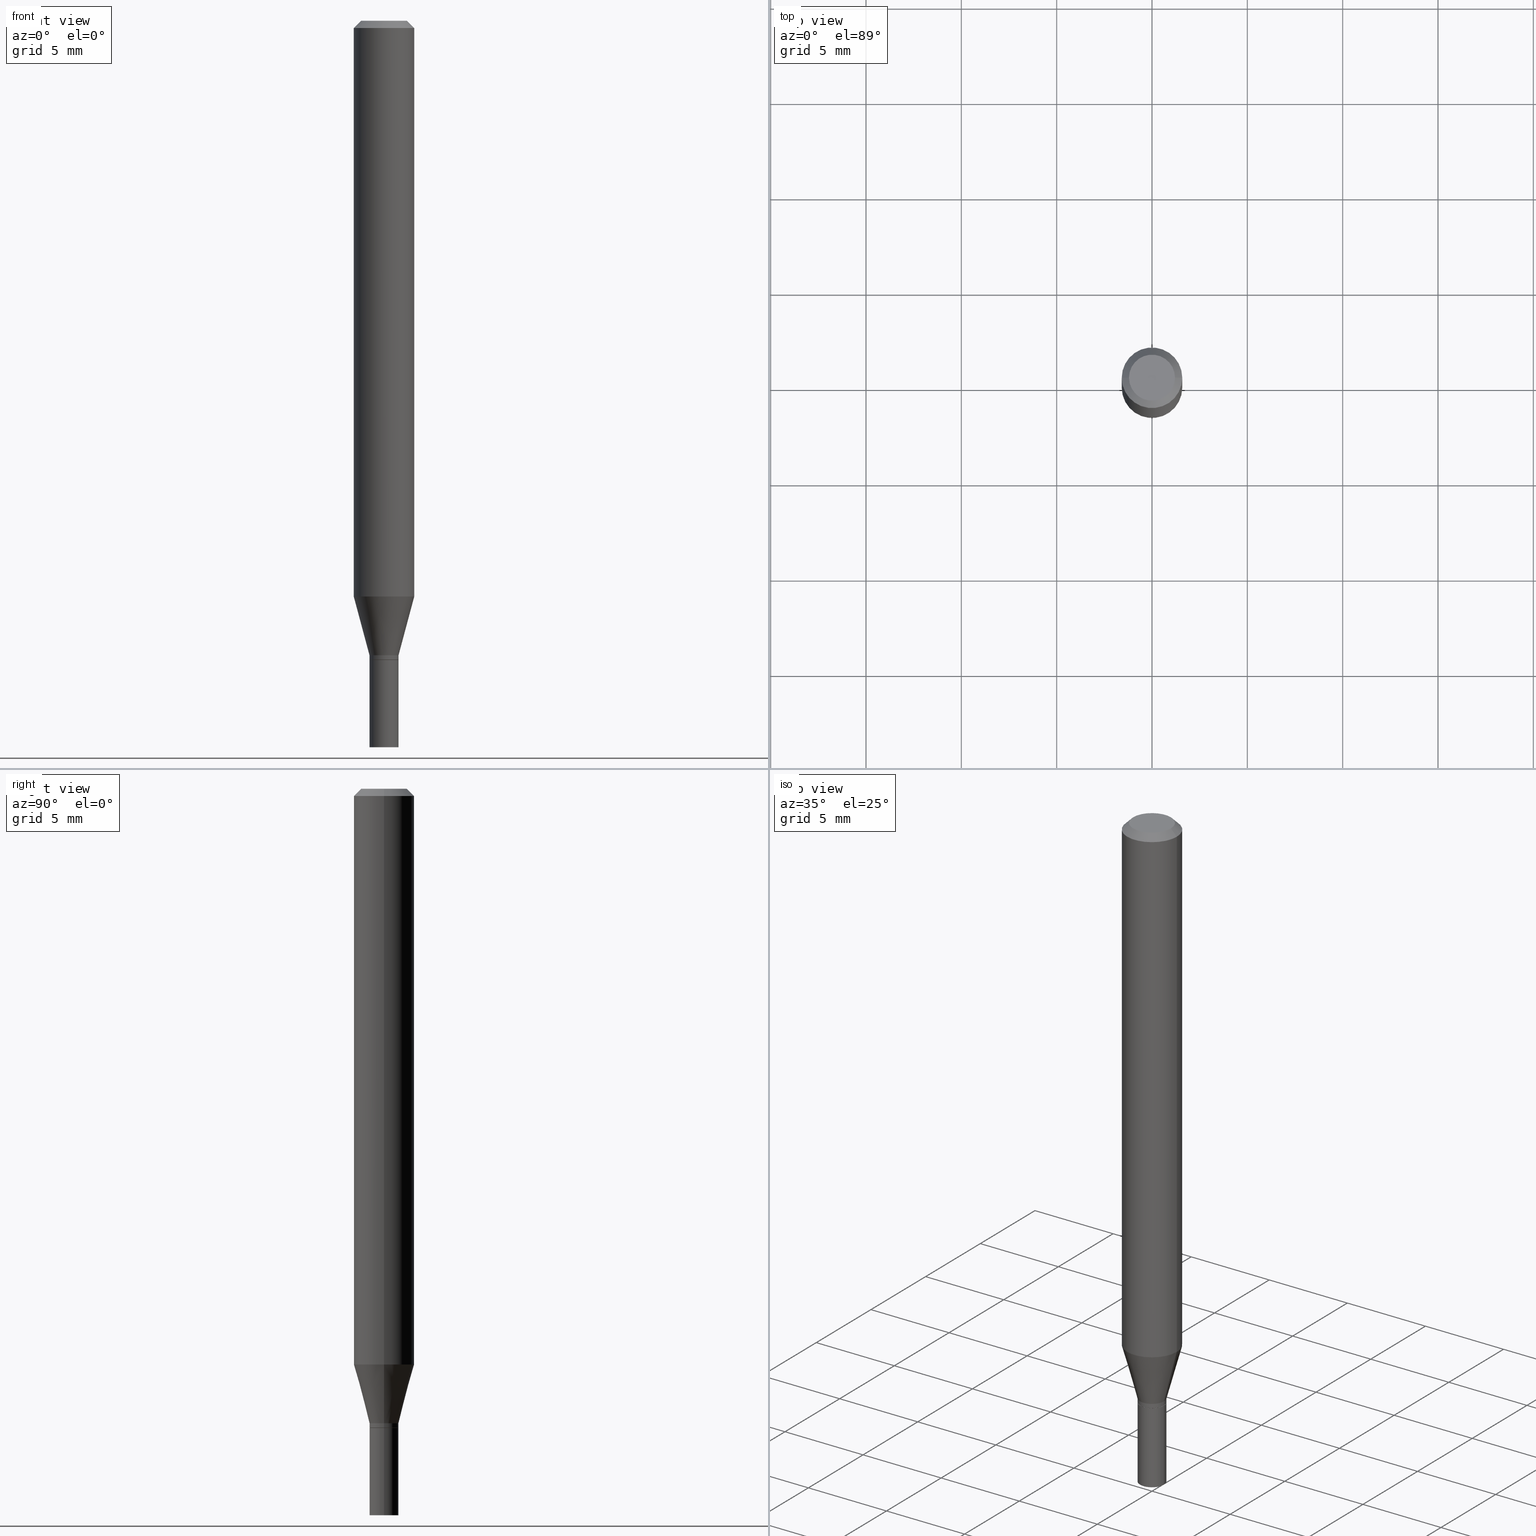
[diagram: canonical four-view strip — front | top / right | iso, engineering-drawing reading convention]
A machine part, canonical four-view strip (front | top / right | iso — engineering-drawing reading convention). The complete STEP part file that produces these views, byte-faithful:
ISO-10303-21;
HEADER;
FILE_DESCRIPTION (( 'STEP AP203' ),
    '1' );
FILE_NAME ('02489.STEP',
    '2024-03-18T20:54:57',
    ( '' ),
    ( '' ),
    'SwSTEP 2.0',
    'SolidWorks 2023',
    '' );
FILE_SCHEMA (( 'CONFIG_CONTROL_DESIGN' ));
ENDSEC;

DATA;
#1 = CIRCLE ( 'NONE', #208, 0.03000000000000020012 ) ;
#2 = CARTESIAN_POINT ( 'NONE',  ( 3.668203209277704895E-29, -5.237222008264718177E-15, -1.500000000000000222 ) ) ;
#3 = CARTESIAN_POINT ( 'NONE',  ( -0.04749999999999999362, 3.578768372314215436E-16, 2.469815280770035755E-16 ) ) ;
#4 = ORIENTED_EDGE ( 'NONE', *, *, #199, .F. ) ;
#5 = EDGE_CURVE ( 'NONE', #21, #398, #247, .T. ) ;
#6 = ORIENTED_EDGE ( 'NONE', *, *, #162, .F. ) ;
#7 = CARTESIAN_POINT ( 'NONE',  ( 3.228018824164380442E-29, -4.608755367272952437E-15, -1.320000000000000062 ) ) ;
#8 = VERTEX_POINT ( 'NONE', #402 ) ;
#9 = AXIS2_PLACEMENT_3D ( 'NONE', #206, #92, #95 ) ;
#10 = APPROVAL_DATE_TIME ( #334, #332 ) ;
#11 = VERTEX_POINT ( 'NONE', #38 ) ;
#12 = DIRECTION ( 'NONE',  ( 1.000000000000000000, -6.982962677686262766E-15, 0.000000000000000000 ) ) ;
#13 = CYLINDRICAL_SURFACE ( 'NONE', #420, 0.02999999999999999889 ) ;
#14 = ORIENTED_EDGE ( 'NONE', *, *, #147, .F. ) ;
#15 = CARTESIAN_POINT ( 'NONE',  ( -0.02949999999999999845, -4.399145260223722302E-15, -1.320000000000000062 ) ) ;
#16 = ADVANCED_FACE ( 'NONE', ( #396 ), #139, .T. ) ;
#17 = AXIS2_PLACEMENT_3D ( 'NONE', #438, #385, #315 ) ;
#18 = DIRECTION ( 'NONE',  ( -1.000000000000000000, 6.982962677686265922E-15, -4.876176775795935793E-29 ) ) ;
#19 = DIRECTION ( 'NONE',  ( -2.445468806185136597E-29, 3.491481338843145583E-15, 1.000000000000000000 ) ) ;
#20 = EDGE_CURVE ( 'NONE', #429, #276, #445, .T. ) ;
#21 = VERTEX_POINT ( 'NONE', #348 ) ;
#22 = CARTESIAN_POINT ( 'NONE',  ( 0.02999999999999999889, -5.446710888595306494E-15, -1.500000000000000222 ) ) ;
#23 = ADVANCED_FACE ( 'NONE', ( #195 ), #307, .T. ) ;
#24 = ORIENTED_EDGE ( 'NONE', *, *, #328, .F. ) ;
#25 = ADVANCED_FACE ( 'NONE', ( #160 ), #338, .T. ) ;
#26 = AXIS2_PLACEMENT_3D ( 'NONE', #366, #397, #217 ) ;
#27 = PLANE ( 'NONE',  #293 ) ;
#28 = COORDINATED_UNIVERSAL_TIME_OFFSET ( 5, 0, .BEHIND. ) ;
#29 = VERTEX_POINT ( 'NONE', #45 ) ;
#30 = CONICAL_SURFACE ( 'NONE', #118, 0.06250000000000000000, 0.7853981633974401744 ) ;
#31 = CARTESIAN_POINT ( 'NONE',  ( -0.02999999999999992256, -4.393846805875501477E-15, -1.319500000000000117 ) ) ;
#32 = CARTESIAN_POINT ( 'NONE',  ( 0.000000000000000000, 0.000000000000000000, 0.000000000000000000 ) ) ;
#33 = MECHANICAL_CONTEXT ( 'NONE', #145, 'mechanical' ) ;
#34 = ORIENTED_EDGE ( 'NONE', *, *, #358, .T. ) ;
#35 = DIRECTION ( 'NONE',  ( -2.445468806185136597E-29, 3.491481338843145583E-15, 1.000000000000000000 ) ) ;
#36 = CYLINDRICAL_SURFACE ( 'NONE', #135, 0.06250000000000000000 ) ;
#37 =( NAMED_UNIT ( * ) SI_UNIT ( $, .STERADIAN. ) SOLID_ANGLE_UNIT ( ) );
#38 = CARTESIAN_POINT ( 'NONE',  ( -0.03000000000000020012, -4.033470770154056946E-15, -1.310000000000000275 ) ) ;
#39 = APPROVAL ( #239, 'UNSPECIFIED' ) ;
#40 = LINE ( 'NONE', #184, #179 ) ;
#41 = FACE_OUTER_BOUND ( 'NONE', #254, .T. ) ;
#42 = PERSON_AND_ORGANIZATION ( #246, #370 ) ;
#43 = ORIENTED_EDGE ( 'NONE', *, *, #147, .T. ) ;
#44 = CIRCLE ( 'NONE', #318, 0.06250000000000000000 ) ;
#45 = CARTESIAN_POINT ( 'NONE',  ( 0.06250000000000000000, -4.586788184357076846E-15, -1.188708348754012878 ) ) ;
#46 = LINE ( 'NONE', #408, #283 ) ;
#47 = PERSON_AND_ORGANIZATION_ROLE ( 'classification_officer' ) ;
#48 = ORIENTED_EDGE ( 'NONE', *, *, #404, .F. ) ;
#49 = EDGE_LOOP ( 'NONE', ( #392, #381, #316, #331 ) ) ;
#50 = EDGE_CURVE ( 'NONE', #299, #153, #341, .T. ) ;
#51 = ORIENTED_EDGE ( 'NONE', *, *, #137, .T. ) ;
#52 = VERTEX_POINT ( 'NONE', #375 ) ;
#53 = DATE_TIME_ROLE ( 'classification_date' ) ;
#54 = ORIENTED_EDGE ( 'NONE', *, *, #400, .T. ) ;
#55 = DIRECTION ( 'NONE',  ( 1.000000000000000000, -6.982962677686253300E-15, 0.000000000000000000 ) ) ;
#56 = SHAPE_DEFINITION_REPRESENTATION ( #447, #89 ) ;
#57 = DIRECTION ( 'NONE',  ( -2.445468806185136597E-29, 3.491481338843145583E-15, 1.000000000000000000 ) ) ;
#58 = DIRECTION ( 'NONE',  ( 1.000000000000000000, -6.982962677686253300E-15, 0.000000000000000000 ) ) ;
#59 = AXIS2_PLACEMENT_3D ( 'NONE', #357, #221, #329 ) ;
#60 = ADVANCED_FACE ( 'NONE', ( #165 ), #237, .F. ) ;
#61 = APPROVAL_PERSON_ORGANIZATION ( #269, #332, #185 ) ;
#62 = ADVANCED_FACE ( 'NONE', ( #172 ), #433, .T. ) ;
#63 = ADVANCED_FACE ( 'NONE', ( #169 ), #319, .T. ) ;
#64 = AXIS2_PLACEMENT_3D ( 'NONE', #229, #422, #159 ) ;
#65 = CC_DESIGN_APPROVAL ( #39, ( #395 ) ) ;
#66 = CARTESIAN_POINT ( 'NONE',  ( 3.576687321579069994E-29, -5.368277968210015545E-15, -1.500000000000000222 ) ) ;
#67 = ORIENTED_EDGE ( 'NONE', *, *, #140, .T. ) ;
#68 = DIRECTION ( 'NONE',  ( 0.000000000000000000, 0.000000000000000000, 1.000000000000000000 ) ) ;
#69 = CONICAL_SURFACE ( 'NONE', #345, 0.02949999999999999845, 0.7853981633974739252 ) ;
#70 = DIRECTION ( 'NONE',  ( -1.000000000000000000, 6.982962677686265922E-15, -4.876176775795935793E-29 ) ) ;
#71 = VECTOR ( 'NONE', #190, 39.37007874015748143 ) ;
#72 = DIRECTION ( 'NONE',  ( 1.000000000000000000, -6.982962677686265922E-15, 4.876176775795935793E-29 ) ) ;
#73 = AXIS2_PLACEMENT_3D ( 'NONE', #7, #296, #301 ) ;
#74 = CYLINDRICAL_SURFACE ( 'NONE', #201, 0.02999999999999999889 ) ;
#75 = ADVANCED_FACE ( 'NONE', ( #317 ), #30, .T. ) ;
#76 = CARTESIAN_POINT ( 'NONE',  ( -0.06250000000000000000, -1.657273408692103709E-15, -0.01499999999999999944 ) ) ;
#77 = COORDINATED_UNIVERSAL_TIME_OFFSET ( 5, 0, .BEHIND. ) ;
#78 = ADVANCED_FACE ( 'NONE', ( #279 ), #27, .F. ) ;
#79 = SECURITY_CLASSIFICATION_LEVEL ( 'unclassified' ) ;
#80 = CARTESIAN_POINT ( 'NONE',  ( 0.02949999999999999845, -4.814752766264696958E-15, -1.320000000000000062 ) ) ;
#81 = COORDINATED_UNIVERSAL_TIME_OFFSET ( 5, 0, .BEHIND. ) ;
#82 = DIRECTION ( 'NONE',  ( -2.445468806185136877E-29, 3.491481338843145188E-15, 1.000000000000000000 ) ) ;
#83 = ORIENTED_EDGE ( 'NONE', *, *, #50, .T. ) ;
#84 = ORIENTED_EDGE ( 'NONE', *, *, #218, .F. ) ;
#85 = LINE ( 'NONE', #15, #129 ) ;
#86 = DIRECTION ( 'NONE',  ( -2.445468806185136597E-29, 3.491481338843145583E-15, 1.000000000000000000 ) ) ;
#87 = DIRECTION ( 'NONE',  ( 1.000000000000000000, -6.982962677686250933E-15, 0.000000000000000000 ) ) ;
#88 = AXIS2_PLACEMENT_3D ( 'NONE', #374, #241, #275 ) ;
#89 = ADVANCED_BREP_SHAPE_REPRESENTATION ( '02489', ( #365, #213, #130 ), #278 ) ;
#90 = UNCERTAINTY_MEASURE_WITH_UNIT (LENGTH_MEASURE( 1.000000000000000082E-05 ), #363, 'distance_accuracy_value', 'NONE');
#91 = CARTESIAN_POINT ( 'NONE',  ( 3.668203209277704895E-29, -5.237222008264718177E-15, -1.500000000000000222 ) ) ;
#92 = DIRECTION ( 'NONE',  ( -2.445468806185136597E-29, 3.491481338843145583E-15, 1.000000000000000000 ) ) ;
#93 = EDGE_LOOP ( 'NONE', ( #243, #167, #377, #14 ) ) ;
#94 = AXIS2_PLACEMENT_3D ( 'NONE', #216, #99, #72 ) ;
#95 = DIRECTION ( 'NONE',  ( 1.000000000000000000, -6.982962677686267499E-15, 4.852736867747366768E-29 ) ) ;
#96 = AXIS2_PLACEMENT_3D ( 'NONE', #112, #19, #268 ) ;
#97 = EDGE_CURVE ( 'NONE', #436, #276, #163, .T. ) ;
#98 = DIRECTION ( 'NONE',  ( 1.000000000000000000, -6.982962677686268288E-15, 0.000000000000000000 ) ) ;
#99 = DIRECTION ( 'NONE',  ( -2.445468806185136597E-29, 3.491481338843145583E-15, 1.000000000000000000 ) ) ;
#100 = EDGE_CURVE ( 'NONE', #8, #153, #359, .T. ) ;
#101 = ORIENTED_EDGE ( 'NONE', *, *, #140, .F. ) ;
#102 = VERTEX_POINT ( 'NONE', #22 ) ;
#103 = LINE ( 'NONE', #253, #250 ) ;
#104 = CC_DESIGN_DATE_AND_TIME_ASSIGNMENT ( #155, #442, ( #212 ) ) ;
#105 = CONICAL_SURFACE ( 'NONE', #200, 0.06250000000000000000, 0.7853981633974401744 ) ;
#106 =( LENGTH_UNIT ( ) NAMED_UNIT ( * ) SI_UNIT ( $, .METRE. ) );
#107 = LOCAL_TIME ( 16, 54, 57.00000000000000000, #28 ) ;
#108 = DIRECTION ( 'NONE',  ( -2.438088387897960049E-29, 3.491481338843145188E-15, 1.000000000000000000 ) ) ;
#109 = APPROVAL_STATUS ( 'not_yet_approved' ) ;
#110 = PERSON_AND_ORGANIZATION_ROLE ( 'design_supplier' ) ;
#111 = EDGE_LOOP ( 'NONE', ( #121, #83, #393, #410 ) ) ;
#112 = CARTESIAN_POINT ( 'NONE',  ( 0.000000000000000000, 0.000000000000000000, 0.000000000000000000 ) ) ;
#113 = CARTESIAN_POINT ( 'NONE',  ( 0.06250000000000000000, -4.888073874380388472E-16, -0.01499999999999999944 ) ) ;
#114 = PERSON_AND_ORGANIZATION ( #246, #370 ) ;
#115 = EDGE_LOOP ( 'NONE', ( #230, #427 ) ) ;
#116 = CALENDAR_DATE ( 2024, 18, 3 ) ;
#117 = CC_DESIGN_PERSON_AND_ORGANIZATION_ASSIGNMENT ( #322, #461, ( #426 ) ) ;
#118 = AXIS2_PLACEMENT_3D ( 'NONE', #453, #131, #274 ) ;
#119 = LOCAL_TIME ( 16, 54, 57.00000000000000000, #77 ) ;
#120 = DIRECTION ( 'NONE',  ( -2.445468806185136597E-29, 3.491481338843145583E-15, 1.000000000000000000 ) ) ;
#121 = ORIENTED_EDGE ( 'NONE', *, *, #284, .T. ) ;
#122 = FACE_OUTER_BOUND ( 'NONE', #360, .T. ) ;
#123 = ORIENTED_EDGE ( 'NONE', *, *, #245, .F. ) ;
#124 = ORIENTED_EDGE ( 'NONE', *, *, #20, .T. ) ;
#125 = FACE_OUTER_BOUND ( 'NONE', #111, .T. ) ;
#126 = ORIENTED_EDGE ( 'NONE', *, *, #323, .T. ) ;
#127 = CC_DESIGN_DATE_AND_TIME_ASSIGNMENT ( #270, #53, ( #395 ) ) ;
#128 = CALENDAR_DATE ( 2024, 18, 3 ) ;
#129 = VECTOR ( 'NONE', #154, 39.37007874015748143 ) ;
#130 = AXIS2_PLACEMENT_3D ( 'NONE', #289, #68, #362 ) ;
#131 = DIRECTION ( 'NONE',  ( 2.445468806185136597E-29, -3.491481338843145583E-15, -1.000000000000000000 ) ) ;
#132 = CARTESIAN_POINT ( 'NONE',  ( 0.000000000000000000, 0.000000000000000000, 0.000000000000000000 ) ) ;
#133 = ADVANCED_FACE ( 'NONE', ( #232 ), #105, .T. ) ;
#134 = CIRCLE ( 'NONE', #403, 0.03000000000000020012 ) ;
#135 = AXIS2_PLACEMENT_3D ( 'NONE', #330, #175, #142 ) ;
#136 = CC_DESIGN_APPROVAL ( #143, ( #212 ) ) ;
#137 = EDGE_CURVE ( 'NONE', #327, #11, #304, .T. ) ;
#138 = DIRECTION ( 'NONE',  ( 0.2588190451025214611, 1.565188264969621573E-15, 0.9659258262890682012 ) ) ;
#139 = CYLINDRICAL_SURFACE ( 'NONE', #94, 0.03000000000000006481 ) ;
#140 = EDGE_CURVE ( 'NONE', #52, #29, #170, .T. ) ;
#141 = LINE ( 'NONE', #288, #258 ) ;
#142 = DIRECTION ( 'NONE',  ( 1.000000000000000000, -6.982962677686266711E-15, 4.876176775795935793E-29 ) ) ;
#143 = APPROVAL ( #109, 'UNSPECIFIED' ) ;
#144 = ORIENTED_EDGE ( 'NONE', *, *, #5, .T. ) ;
#145 = APPLICATION_CONTEXT ( 'configuration controlled 3d designs of mechanical parts and assemblies' ) ;
#146 = DIRECTION ( 'NONE',  ( -2.445468806185136877E-29, 3.491481338843145188E-15, 1.000000000000000000 ) ) ;
#147 = EDGE_CURVE ( 'NONE', #153, #8, #353, .T. ) ;
#148 = FACE_OUTER_BOUND ( 'NONE', #115, .T. ) ;
#149 = CLOSED_SHELL ( 'NONE', ( #16, #181, #75, #444, #62, #209, #25, #133, #465, #60, #23, #63 ) ) ;
#150 = AXIS2_PLACEMENT_3D ( 'NONE', #203, #371, #457 ) ;
#151 = DIRECTION ( 'NONE',  ( 0.7071067811865416886, -7.319954787623233957E-15, -0.7071067811865531239 ) ) ;
#152 = PERSON_AND_ORGANIZATION ( #246, #370 ) ;
#153 = VERTEX_POINT ( 'NONE', #443 ) ;
#154 = DIRECTION ( 'NONE',  ( -0.7071067811865656694, 7.493145998870420424E-15, 0.7071067811865294761 ) ) ;
#155 = DATE_AND_TIME ( #265, #119 ) ;
#156 = ORIENTED_EDGE ( 'NONE', *, *, #233, .F. ) ;
#157 = DIRECTION ( 'NONE',  ( 2.445468806185136597E-29, -3.491481338843145583E-15, -1.000000000000000000 ) ) ;
#158 = ORIENTED_EDGE ( 'NONE', *, *, #100, .T. ) ;
#159 = DIRECTION ( 'NONE',  ( 1.000000000000000000, -6.982962677686268288E-15, 0.000000000000000000 ) ) ;
#160 = FACE_OUTER_BOUND ( 'NONE', #401, .T. ) ;
#161 = AXIS2_PLACEMENT_3D ( 'NONE', #343, #277, #267 ) ;
#162 = EDGE_CURVE ( 'NONE', #205, #21, #198, .T. ) ;
#163 = LINE ( 'NONE', #310, #356 ) ;
#164 = DIRECTION ( 'NONE',  ( -0.7071067811865416886, 2.468850131082196713E-15, -0.7071067811865531239 ) ) ;
#165 = FACE_OUTER_BOUND ( 'NONE', #376, .T. ) ;
#166 = CC_DESIGN_PERSON_AND_ORGANIZATION_ASSIGNMENT ( #439, #110, ( #320 ) ) ;
#167 = ORIENTED_EDGE ( 'NONE', *, *, #430, .T. ) ;
#168 = EDGE_CURVE ( 'NONE', #421, #327, #85, .T. ) ;
#169 = FACE_OUTER_BOUND ( 'NONE', #448, .T. ) ;
#170 = CIRCLE ( 'NONE', #219, 0.06250000000000000000 ) ;
#171 = ORIENTED_EDGE ( 'NONE', *, *, #388, .F. ) ;
#172 = FACE_OUTER_BOUND ( 'NONE', #354, .T. ) ;
#173 = CIRCLE ( 'NONE', #238, 0.04749999999999999362 ) ;
#174 = EDGE_CURVE ( 'NONE', #102, #8, #451, .T. ) ;
#175 = DIRECTION ( 'NONE',  ( -2.445468806185136597E-29, 3.491481338843145583E-15, 1.000000000000000000 ) ) ;
#176 = CARTESIAN_POINT ( 'NONE',  ( 0.04749999999999999362, -4.035134999187574186E-16, 2.469815280770085059E-16 ) ) ;
#177 = CARTESIAN_POINT ( 'NONE',  ( 3.203564136102529457E-29, -4.573840553884521577E-15, -1.310000000000000275 ) ) ;
#178 = VECTOR ( 'NONE', #146, 39.37007874015748143 ) ;
#179 = VECTOR ( 'NONE', #151, 39.37007874015748854 ) ;
#180 = EDGE_CURVE ( 'NONE', #327, #21, #186, .T. ) ;
#181 = ADVANCED_FACE ( 'NONE', ( #122 ), #69, .T. ) ;
#182 = DIRECTION ( 'NONE',  ( 2.438088387897960049E-29, -3.491481338843145188E-15, -1.000000000000000000 ) ) ;
#183 = DIRECTION ( 'NONE',  ( 1.000000000000000000, -6.982962677686253300E-15, 0.000000000000000000 ) ) ;
#184 = CARTESIAN_POINT ( 'NONE',  ( 0.06250000000000000000, -4.811533449433679005E-16, -0.01499999999999999944 ) ) ;
#185 = APPROVAL_ROLE ( '' ) ;
#186 = CIRCLE ( 'NONE', #88, 0.02999999999999992256 ) ;
#187 = EDGE_LOOP ( 'NONE', ( #158, #43 ) ) ;
#188 = CARTESIAN_POINT ( 'NONE',  ( 0.03000000000000020012, -4.783329434215110683E-15, -1.310000000000000275 ) ) ;
#189 = ADVANCED_FACE ( 'NONE', ( #125 ), #13, .T. ) ;
#190 = DIRECTION ( 'NONE',  ( -2.445468806185136877E-29, 3.491481338843145188E-15, 1.000000000000000000 ) ) ;
#191 = APPROVAL_STATUS ( 'not_yet_approved' ) ;
#192 = ORIENTED_EDGE ( 'NONE', *, *, #273, .F. ) ;
#193 = EDGE_LOOP ( 'NONE', ( #342, #313, #295, #192 ) ) ;
#194 = DIRECTION ( 'NONE',  ( -2.445468806185136597E-29, 3.491481338843145583E-15, 1.000000000000000000 ) ) ;
#195 = FACE_OUTER_BOUND ( 'NONE', #49, .T. ) ;
#196 = DIRECTION ( 'NONE',  ( 2.438088387897960049E-29, -3.491481338843145188E-15, -1.000000000000000000 ) ) ;
#197 = ORIENTED_EDGE ( 'NONE', *, *, #168, .T. ) ;
#198 = LINE ( 'NONE', #413, #379 ) ;
#199 = EDGE_CURVE ( 'NONE', #398, #11, #134, .T. ) ;
#200 = AXIS2_PLACEMENT_3D ( 'NONE', #314, #157, #378 ) ;
#201 = AXIS2_PLACEMENT_3D ( 'NONE', #32, #222, #297 ) ;
#202 = ORIENTED_EDGE ( 'NONE', *, *, #400, .F. ) ;
#203 = CARTESIAN_POINT ( 'NONE',  ( 3.203564136102529457E-29, -4.573840553884521577E-15, -1.310000000000000275 ) ) ;
#204 = CARTESIAN_POINT ( 'NONE',  ( 3.228018824164380442E-29, -4.608755367272952437E-15, -1.320000000000000062 ) ) ;
#205 = VERTEX_POINT ( 'NONE', #80 ) ;
#206 = CARTESIAN_POINT ( 'NONE',  ( -6.039856226162565090E-45, 8.623313963198306787E-31, 2.469815280770059421E-16 ) ) ;
#207 = AXIS2_PLACEMENT_3D ( 'NONE', #66, #108, #256 ) ;
#208 = AXIS2_PLACEMENT_3D ( 'NONE', #177, #326, #183 ) ;
#209 = ADVANCED_FACE ( 'NONE', ( #227 ), #409, .T. ) ;
#210 = APPLICATION_CONTEXT ( 'configuration controlled 3d designs of mechanical parts and assemblies' ) ;
#211 = DIRECTION ( 'NONE',  ( -2.445468806185136597E-29, 3.491481338843145583E-15, 1.000000000000000000 ) ) ;
#212 = PRODUCT_DEFINITION ( 'UNKNOWN', '', #320, #384 ) ;
#213 = MANIFOLD_SOLID_BREP ( 'Body-Move/Copy2[2]', #149 ) ;
#214 = CIRCLE ( 'NONE', #9, 0.04749999999999999362 ) ;
#215 = DIRECTION ( 'NONE',  ( -2.445468806185136877E-29, 3.491481338843145188E-15, 1.000000000000000000 ) ) ;
#216 = CARTESIAN_POINT ( 'NONE',  ( 0.000000000000000000, 0.000000000000000000, 0.000000000000000000 ) ) ;
#217 = DIRECTION ( 'NONE',  ( 1.000000000000000000, -6.982962677686254089E-15, 0.000000000000000000 ) ) ;
#218 = EDGE_CURVE ( 'NONE', #350, #436, #214, .T. ) ;
#219 = AXIS2_PLACEMENT_3D ( 'NONE', #418, #194, #12 ) ;
#220 = CARTESIAN_POINT ( 'NONE',  ( 3.668203209277705088E-31, -5.237222008264718399E-17, -0.01499999999999999944 ) ) ;
#221 = DIRECTION ( 'NONE',  ( -2.445468806185136597E-29, 3.491481338843145583E-15, 1.000000000000000000 ) ) ;
#222 = DIRECTION ( 'NONE',  ( -2.445468806185136597E-29, 3.491481338843145583E-15, 1.000000000000000000 ) ) ;
#223 = DIRECTION ( 'NONE',  ( -2.445468806185136597E-29, 3.491481338843145583E-15, 1.000000000000000000 ) ) ;
#224 = FACE_OUTER_BOUND ( 'NONE', #193, .T. ) ;
#225 = COORDINATED_UNIVERSAL_TIME_OFFSET ( 5, 0, .BEHIND. ) ;
#226 = CIRCLE ( 'NONE', #26, 0.02999999999999992256 ) ;
#227 = FACE_OUTER_BOUND ( 'NONE', #252, .T. ) ;
#228 = DATE_AND_TIME ( #406, #272 ) ;
#229 = CARTESIAN_POINT ( 'NONE',  ( 3.228018824164380442E-29, -4.608755367272952437E-15, -1.320000000000000062 ) ) ;
#230 = ORIENTED_EDGE ( 'NONE', *, *, #284, .F. ) ;
#231 = ORIENTED_EDGE ( 'NONE', *, *, #5, .F. ) ;
#232 = FACE_OUTER_BOUND ( 'NONE', #266, .T. ) ;
#233 = EDGE_CURVE ( 'NONE', #421, #205, #271, .T. ) ;
#234 = EDGE_LOOP ( 'NONE', ( #303, #51, #4, #231 ) ) ;
#235 = DIRECTION ( 'NONE',  ( 1.000000000000000000, -6.982962677686267499E-15, 4.876176775795936353E-29 ) ) ;
#236 = AXIS2_PLACEMENT_3D ( 'NONE', #321, #57, #58 ) ;
#237 = PLANE ( 'NONE',  #17 ) ;
#238 = AXIS2_PLACEMENT_3D ( 'NONE', #305, #120, #264 ) ;
#239 = APPROVAL_STATUS ( 'not_yet_approved' ) ;
#240 = ORIENTED_EDGE ( 'NONE', *, *, #358, .F. ) ;
#241 = DIRECTION ( 'NONE',  ( -2.445468806185136597E-29, 3.491481338843145583E-15, 1.000000000000000000 ) ) ;
#242 = EDGE_CURVE ( 'NONE', #29, #52, #335, .T. ) ;
#243 = ORIENTED_EDGE ( 'NONE', *, *, #50, .F. ) ;
#244 = LOCAL_TIME ( 16, 54, 57.00000000000000000, #306 ) ;
#245 = EDGE_CURVE ( 'NONE', #52, #276, #141, .T. ) ;
#246 = PERSON ( 'UNSPECIFIED', 'UNSPECIFIED', 'UNSPECIFIED', ('UNSPECIFIED'), ('UNSPECIFIED'), ('UNSPECIFIED') ) ;
#247 = LINE ( 'NONE', #255, #178 ) ;
#248 = CC_DESIGN_PERSON_AND_ORGANIZATION_ASSIGNMENT ( #152, #298, ( #320 ) ) ;
#249 = ADVANCED_FACE ( 'NONE', ( #148 ), #435, .F. ) ;
#250 = VECTOR ( 'NONE', #138, 39.37007874015747433 ) ;
#251 = DIRECTION ( 'NONE',  ( 1.000000000000000000, -6.982962677686266711E-15, 0.000000000000000000 ) ) ;
#252 = EDGE_LOOP ( 'NONE', ( #48, #34, #414, #101 ) ) ;
#253 = CARTESIAN_POINT ( 'NONE',  ( 0.03000000000000020012, -4.783329434215110683E-15, -1.310000000000000275 ) ) ;
#254 = EDGE_LOOP ( 'NONE', ( #54, #290 ) ) ;
#255 = CARTESIAN_POINT ( 'NONE',  ( 0.03000000000000006481, -2.094888803305884401E-16, 1.462853032738783856E-30 ) ) ;
#256 = DIRECTION ( 'NONE',  ( 1.000000000000000000, -6.982962677686265922E-15, 4.876176775795935793E-29 ) ) ;
#257 = FACE_OUTER_BOUND ( 'NONE', #93, .T. ) ;
#258 = VECTOR ( 'NONE', #215, 39.37007874015748143 ) ;
#259 = CC_DESIGN_APPROVAL ( #332, ( #320 ) ) ;
#260 = LINE ( 'NONE', #405, #325 ) ;
#261 = APPROVAL_ROLE ( '' ) ;
#262 = ORIENTED_EDGE ( 'NONE', *, *, #97, .T. ) ;
#263 = LENGTH_MEASURE_WITH_UNIT ( LENGTH_MEASURE( 0.02539999999999999897 ), #106 );
#264 = DIRECTION ( 'NONE',  ( 1.000000000000000000, -6.982962677686267499E-15, 4.852736867747366768E-29 ) ) ;
#265 = CALENDAR_DATE ( 2024, 18, 3 ) ;
#266 = EDGE_LOOP ( 'NONE', ( #419, #202, #262, #126 ) ) ;
#267 = DIRECTION ( 'NONE',  ( 1.000000000000000000, -6.982962677686268288E-15, 0.000000000000000000 ) ) ;
#268 = DIRECTION ( 'NONE',  ( 1.000000000000000000, -6.982962677686266711E-15, 4.876176775795935793E-29 ) ) ;
#269 = PERSON_AND_ORGANIZATION ( #246, #370 ) ;
#270 = DATE_AND_TIME ( #116, #244 ) ;
#271 = CIRCLE ( 'NONE', #462, 0.02949999999999999845 ) ;
#272 = LOCAL_TIME ( 16, 54, 57.00000000000000000, #81 ) ;
#273 = EDGE_CURVE ( 'NONE', #29, #429, #260, .T. ) ;
#274 = DIRECTION ( 'NONE',  ( -1.000000000000000000, 6.982962677686266711E-15, 0.000000000000000000 ) ) ;
#275 = DIRECTION ( 'NONE',  ( 1.000000000000000000, -6.982962677686254089E-15, 0.000000000000000000 ) ) ;
#276 = VERTEX_POINT ( 'NONE', #76 ) ;
#277 = DIRECTION ( 'NONE',  ( -2.445468806185136597E-29, 3.491481338843145583E-15, 1.000000000000000000 ) ) ;
#278 =( GEOMETRIC_REPRESENTATION_CONTEXT ( 3 ) GLOBAL_UNCERTAINTY_ASSIGNED_CONTEXT ( ( #90 ) ) GLOBAL_UNIT_ASSIGNED_CONTEXT ( ( #363, #428, #37 ) ) REPRESENTATION_CONTEXT ( 'NONE', 'WORKASPACE' ) );
#279 = FACE_OUTER_BOUND ( 'NONE', #187, .T. ) ;
#280 = DIRECTION ( 'NONE',  ( 1.000000000000000000, -6.982962677686265922E-15, 4.876176775795935793E-29 ) ) ;
#281 = DIMENSIONAL_EXPONENTS ( 1.000000000000000000, 0.000000000000000000, 0.000000000000000000, 0.000000000000000000, 0.000000000000000000, 0.000000000000000000, 0.000000000000000000 ) ;
#282 = VECTOR ( 'NONE', #82, 39.37007874015748143 ) ;
#283 = VECTOR ( 'NONE', #441, 39.37007874015747433 ) ;
#284 = EDGE_CURVE ( 'NONE', #102, #299, #455, .T. ) ;
#285 = DIRECTION ( 'NONE',  ( 1.000000000000000000, -6.982962677686250933E-15, 0.000000000000000000 ) ) ;
#286 = DIRECTION ( 'NONE',  ( -2.445468806185136597E-29, 3.491481338843145583E-15, 1.000000000000000000 ) ) ;
#287 = ORIENTED_EDGE ( 'NONE', *, *, #180, .T. ) ;
#288 = CARTESIAN_POINT ( 'NONE',  ( -0.06250000000000000000, 4.440892098500626162E-16, -3.074334431409316114E-30 ) ) ;
#289 = CARTESIAN_POINT ( 'NONE',  ( 0.000000000000000000, 0.000000000000000000, 0.000000000000000000 ) ) ;
#290 = ORIENTED_EDGE ( 'NONE', *, *, #218, .T. ) ;
#291 = DIRECTION ( 'NONE',  ( 1.000000000000000000, -6.982962677686268288E-15, 0.000000000000000000 ) ) ;
#292 = EDGE_CURVE ( 'NONE', #398, #29, #103, .T. ) ;
#293 = AXIS2_PLACEMENT_3D ( 'NONE', #458, #196, #18 ) ;
#294 = CIRCLE ( 'NONE', #73, 0.02949999999999999845 ) ;
#295 = ORIENTED_EDGE ( 'NONE', *, *, #20, .F. ) ;
#296 = DIRECTION ( 'NONE',  ( -2.445468806185136597E-29, 3.491481338843145583E-15, 1.000000000000000000 ) ) ;
#297 = DIRECTION ( 'NONE',  ( 1.000000000000000000, -6.982962677686267499E-15, 4.876176775795936353E-29 ) ) ;
#298 = PERSON_AND_ORGANIZATION_ROLE ( 'creator' ) ;
#299 = VERTEX_POINT ( 'NONE', #324 ) ;
#300 = CARTESIAN_POINT ( 'NONE',  ( 3.228018824164380442E-29, -4.608755367272952437E-15, -1.320000000000000062 ) ) ;
#301 = DIRECTION ( 'NONE',  ( 1.000000000000000000, -6.982962677686250933E-15, 0.000000000000000000 ) ) ;
#302 = APPLICATION_PROTOCOL_DEFINITION ( 'international standard', 'config_control_design', 1994, #210 ) ;
#303 = ORIENTED_EDGE ( 'NONE', *, *, #328, .T. ) ;
#304 = LINE ( 'NONE', #311, #369 ) ;
#305 = CARTESIAN_POINT ( 'NONE',  ( -6.039856226162565090E-45, 8.623313963198306787E-31, 2.469815280770059421E-16 ) ) ;
#306 = COORDINATED_UNIVERSAL_TIME_OFFSET ( 5, 0, .BEHIND. ) ;
#307 = CONICAL_SURFACE ( 'NONE', #346, 0.02949999999999999845, 0.7853981633974739252 ) ;
#308 = ORIENTED_EDGE ( 'NONE', *, *, #386, .T. ) ;
#309 = LOCAL_TIME ( 16, 54, 57.00000000000000000, #225 ) ;
#310 = CARTESIAN_POINT ( 'NONE',  ( -0.06250000000000000000, 3.840629472727444916E-16, -0.01499999999999999944 ) ) ;
#311 = CARTESIAN_POINT ( 'NONE',  ( -0.03000000000000006481, 2.131628207280305163E-16, -1.475680527076474859E-30 ) ) ;
#312 = PERSON_AND_ORGANIZATION ( #246, #370 ) ;
#313 = ORIENTED_EDGE ( 'NONE', *, *, #245, .T. ) ;
#314 = CARTESIAN_POINT ( 'NONE',  ( 3.668203209277705088E-31, -5.237222008264718399E-17, -0.01499999999999999944 ) ) ;
#315 = DIRECTION ( 'NONE',  ( 1.000000000000000000, -6.982962677686265922E-15, 4.876176775795935793E-29 ) ) ;
#316 = ORIENTED_EDGE ( 'NONE', *, *, #162, .T. ) ;
#317 = FACE_OUTER_BOUND ( 'NONE', #364, .T. ) ;
#318 = AXIS2_PLACEMENT_3D ( 'NONE', #361, #286, #251 ) ;
#319 = CYLINDRICAL_SURFACE ( 'NONE', #394, 0.03000000000000006481 ) ;
#320 = PRODUCT_DEFINITION_FORMATION_WITH_SPECIFIED_SOURCE ( 'ANY', '', #426, .NOT_KNOWN. ) ;
#321 = CARTESIAN_POINT ( 'NONE',  ( 3.203564136102529457E-29, -4.573840553884521577E-15, -1.310000000000000275 ) ) ;
#322 = PERSON_AND_ORGANIZATION ( #246, #370 ) ;
#323 = EDGE_CURVE ( 'NONE', #276, #429, #44, .T. ) ;
#324 = CARTESIAN_POINT ( 'NONE',  ( -0.02999999999999999889, -4.709825867040805456E-15, -1.500000000000000222 ) ) ;
#325 = VECTOR ( 'NONE', #431, 39.37007874015748143 ) ;
#326 = DIRECTION ( 'NONE',  ( -2.445468806185136597E-29, 3.491481338843145583E-15, 1.000000000000000000 ) ) ;
#327 = VERTEX_POINT ( 'NONE', #31 ) ;
#328 = EDGE_CURVE ( 'NONE', #21, #327, #226, .T. ) ;
#329 = DIRECTION ( 'NONE',  ( 1.000000000000000000, -6.982962677686262766E-15, 0.000000000000000000 ) ) ;
#330 = CARTESIAN_POINT ( 'NONE',  ( 0.000000000000000000, 0.000000000000000000, 0.000000000000000000 ) ) ;
#331 = ORIENTED_EDGE ( 'NONE', *, *, #180, .F. ) ;
#332 = APPROVAL ( #191, 'UNSPECIFIED' ) ;
#333 = PLANE ( 'NONE',  #336 ) ;
#334 = DATE_AND_TIME ( #367, #309 ) ;
#335 = CIRCLE ( 'NONE', #59, 0.06250000000000000000 ) ;
#336 = AXIS2_PLACEMENT_3D ( 'NONE', #399, #182, #70 ) ;
#337 = DIRECTION ( 'NONE',  ( -2.445468806185136877E-29, 3.491481338843145188E-15, 1.000000000000000000 ) ) ;
#338 = CYLINDRICAL_SURFACE ( 'NONE', #96, 0.06250000000000000000 ) ;
#339 = CARTESIAN_POINT ( 'NONE',  ( -0.02949999999999999845, -4.396496033049612679E-15, -1.320000000000000062 ) ) ;
#340 = PERSON_AND_ORGANIZATION_ROLE ( 'creator' ) ;
#341 = LINE ( 'NONE', #412, #282 ) ;
#342 = ORIENTED_EDGE ( 'NONE', *, *, #242, .T. ) ;
#343 = CARTESIAN_POINT ( 'NONE',  ( 3.228018824164380442E-29, -4.608755367272952437E-15, -1.320000000000000062 ) ) ;
#344 = APPROVAL_DATE_TIME ( #387, #39 ) ;
#345 = AXIS2_PLACEMENT_3D ( 'NONE', #300, #86, #446 ) ;
#346 = AXIS2_PLACEMENT_3D ( 'NONE', #204, #450, #87 ) ;
#347 = CIRCLE ( 'NONE', #434, 0.02999999999999999889 ) ;
#348 = CARTESIAN_POINT ( 'NONE',  ( 0.02999999999999992256, -4.816498506934118462E-15, -1.319500000000000117 ) ) ;
#349 = DIRECTION ( 'NONE',  ( -2.445468806185136597E-29, 3.491481338843145583E-15, 1.000000000000000000 ) ) ;
#350 = VERTEX_POINT ( 'NONE', #176 ) ;
#351 = ORIENTED_EDGE ( 'NONE', *, *, #199, .T. ) ;
#352 = CLOSED_SHELL ( 'NONE', ( #189, #249, #459, #78 ) ) ;
#353 = CIRCLE ( 'NONE', #64, 0.02999999999999999889 ) ;
#354 = EDGE_LOOP ( 'NONE', ( #351, #466, #460, #432 ) ) ;
#355 = APPROVAL_ROLE ( '' ) ;
#356 = VECTOR ( 'NONE', #164, 39.37007874015748854 ) ;
#357 = CARTESIAN_POINT ( 'NONE',  ( 2.906949186529780913E-29, -4.150353017001685176E-15, -1.188708348754012878 ) ) ;
#358 = EDGE_CURVE ( 'NONE', #11, #398, #1, .T. ) ;
#359 = CIRCLE ( 'NONE', #161, 0.02999999999999999889 ) ;
#360 = EDGE_LOOP ( 'NONE', ( #456, #197, #24, #6 ) ) ;
#361 = CARTESIAN_POINT ( 'NONE',  ( 3.668203209277705088E-31, -5.237222008264718399E-17, -0.01499999999999999944 ) ) ;
#362 = DIRECTION ( 'NONE',  ( 1.000000000000000000, 0.000000000000000000, 0.000000000000000000 ) ) ;
#363 =( CONVERSION_BASED_UNIT ( 'INCH', #263 ) LENGTH_UNIT ( ) NAMED_UNIT ( #281 ) );
#364 = EDGE_LOOP ( 'NONE', ( #84, #308, #124, #417 ) ) ;
#365 = MANIFOLD_SOLID_BREP ( 'Body-Move/Copy2[1]', #352 ) ;
#366 = CARTESIAN_POINT ( 'NONE',  ( 3.226796089761288762E-29, -4.607009626603530934E-15, -1.319500000000000117 ) ) ;
#367 = CALENDAR_DATE ( 2024, 18, 3 ) ;
#368 = DIRECTION ( 'NONE',  ( 1.000000000000000000, -6.982962677686266711E-15, 0.000000000000000000 ) ) ;
#369 = VECTOR ( 'NONE', #337, 39.37007874015748143 ) ;
#370 = ORGANIZATION ( 'UNSPECIFIED', 'UNSPECIFIED', '' ) ;
#371 = DIRECTION ( 'NONE',  ( -2.445468806185136597E-29, 3.491481338843145583E-15, 1.000000000000000000 ) ) ;
#372 = APPROVAL_DATE_TIME ( #228, #143 ) ;
#373 = ORIENTED_EDGE ( 'NONE', *, *, #323, .F. ) ;
#374 = CARTESIAN_POINT ( 'NONE',  ( 3.226796089761288762E-29, -4.607009626603530934E-15, -1.319500000000000117 ) ) ;
#375 = CARTESIAN_POINT ( 'NONE',  ( -0.06250000000000000000, -3.706263807151623349E-15, -1.188708348754012878 ) ) ;
#376 = EDGE_LOOP ( 'NONE', ( #171, #156 ) ) ;
#377 = ORIENTED_EDGE ( 'NONE', *, *, #174, .T. ) ;
#378 = DIRECTION ( 'NONE',  ( -1.000000000000000000, 6.982962677686266711E-15, 0.000000000000000000 ) ) ;
#379 = VECTOR ( 'NONE', #411, 39.37007874015748143 ) ;
#380 = CC_DESIGN_SECURITY_CLASSIFICATION ( #395, ( #320 ) ) ;
#381 = ORIENTED_EDGE ( 'NONE', *, *, #233, .T. ) ;
#382 = CARTESIAN_POINT ( 'NONE',  ( 3.203564136102529457E-29, -4.573840553884521577E-15, -1.310000000000000275 ) ) ;
#383 = CC_DESIGN_PERSON_AND_ORGANIZATION_ASSIGNMENT ( #114, #340, ( #212 ) ) ;
#384 = DESIGN_CONTEXT ( 'detailed design', #210, 'design' ) ;
#385 = DIRECTION ( 'NONE',  ( -2.438088387897960049E-29, 3.491481338843145188E-15, 1.000000000000000000 ) ) ;
#386 = EDGE_CURVE ( 'NONE', #350, #429, #40, .T. ) ;
#387 = DATE_AND_TIME ( #128, #107 ) ;
#388 = EDGE_CURVE ( 'NONE', #205, #421, #294, .T. ) ;
#389 = DIRECTION ( 'NONE',  ( -2.445468806185136597E-29, 3.491481338843145583E-15, 1.000000000000000000 ) ) ;
#390 = CARTESIAN_POINT ( 'NONE',  ( 3.228018824164380442E-29, -4.608755367272952437E-15, -1.320000000000000062 ) ) ;
#391 = AXIS2_PLACEMENT_3D ( 'NONE', #220, #35, #368 ) ;
#392 = ORIENTED_EDGE ( 'NONE', *, *, #168, .F. ) ;
#393 = ORIENTED_EDGE ( 'NONE', *, *, #100, .F. ) ;
#394 = AXIS2_PLACEMENT_3D ( 'NONE', #132, #452, #280 ) ;
#395 = SECURITY_CLASSIFICATION ( '', '', #79 ) ;
#396 = FACE_OUTER_BOUND ( 'NONE', #234, .T. ) ;
#397 = DIRECTION ( 'NONE',  ( -2.445468806185136597E-29, 3.491481338843145583E-15, 1.000000000000000000 ) ) ;
#398 = VERTEX_POINT ( 'NONE', #188 ) ;
#399 = CARTESIAN_POINT ( 'NONE',  ( 3.316907271900976096E-16, 0.04749999999999999362, -4.235459955654642541E-17 ) ) ;
#400 = EDGE_CURVE ( 'NONE', #436, #350, #173, .T. ) ;
#401 = EDGE_LOOP ( 'NONE', ( #123, #67, #416, #373 ) ) ;
#402 = CARTESIAN_POINT ( 'NONE',  ( 0.02999999999999999889, -4.818244247603540754E-15, -1.320000000000000062 ) ) ;
#403 = AXIS2_PLACEMENT_3D ( 'NONE', #382, #349, #55 ) ;
#404 = EDGE_CURVE ( 'NONE', #11, #52, #46, .T. ) ;
#405 = CARTESIAN_POINT ( 'NONE',  ( 0.06250000000000000000, -4.364351673553916694E-16, 3.047610484872459871E-30 ) ) ;
#406 = CALENDAR_DATE ( 2024, 18, 3 ) ;
#407 = DIRECTION ( 'NONE',  ( -2.445468806185136597E-29, 3.491481338843145583E-15, 1.000000000000000000 ) ) ;
#408 = CARTESIAN_POINT ( 'NONE',  ( -0.03000000000000020012, -4.360677733156489754E-15, -1.310000000000000275 ) ) ;
#409 = CONICAL_SURFACE ( 'NONE', #150, 0.03000000000000020012, 0.2617993877991501295 ) ;
#410 = ORIENTED_EDGE ( 'NONE', *, *, #174, .F. ) ;
#411 = DIRECTION ( 'NONE',  ( 0.7071067811865656694, -2.468850131082446387E-15, 0.7071067811865294761 ) ) ;
#412 = CARTESIAN_POINT ( 'NONE',  ( -0.02999999999999999889, 2.131628207280300479E-16, -1.475680527076471707E-30 ) ) ;
#413 = CARTESIAN_POINT ( 'NONE',  ( 0.02949999999999999845, -4.814752766264696958E-15, -1.320000000000000062 ) ) ;
#414 = ORIENTED_EDGE ( 'NONE', *, *, #292, .T. ) ;
#415 = PERSON_AND_ORGANIZATION ( #246, #370 ) ;
#416 = ORIENTED_EDGE ( 'NONE', *, *, #273, .T. ) ;
#417 = ORIENTED_EDGE ( 'NONE', *, *, #97, .F. ) ;
#418 = CARTESIAN_POINT ( 'NONE',  ( 2.906949186529780913E-29, -4.150353017001685176E-15, -1.188708348754012878 ) ) ;
#419 = ORIENTED_EDGE ( 'NONE', *, *, #386, .F. ) ;
#420 = AXIS2_PLACEMENT_3D ( 'NONE', #440, #407, #235 ) ;
#421 = VERTEX_POINT ( 'NONE', #339 ) ;
#422 = DIRECTION ( 'NONE',  ( -2.445468806185136597E-29, 3.491481338843145583E-15, 1.000000000000000000 ) ) ;
#423 = PRODUCT_RELATED_PRODUCT_CATEGORY ( 'detail', '', ( #426 ) ) ;
#424 = AXIS2_PLACEMENT_3D ( 'NONE', #2, #223, #98 ) ;
#425 = APPROVAL_PERSON_ORGANIZATION ( #312, #39, #355 ) ;
#426 = PRODUCT ( '02489', '02489', '', ( #33 ) ) ;
#427 = ORIENTED_EDGE ( 'NONE', *, *, #430, .F. ) ;
#428 =( NAMED_UNIT ( * ) PLANE_ANGLE_UNIT ( ) SI_UNIT ( $, .RADIAN. ) );
#429 = VERTEX_POINT ( 'NONE', #113 ) ;
#430 = EDGE_CURVE ( 'NONE', #299, #102, #347, .T. ) ;
#431 = DIRECTION ( 'NONE',  ( -2.445468806185136877E-29, 3.491481338843145188E-15, 1.000000000000000000 ) ) ;
#432 = ORIENTED_EDGE ( 'NONE', *, *, #292, .F. ) ;
#433 = CONICAL_SURFACE ( 'NONE', #236, 0.03000000000000020012, 0.2617993877991501295 ) ;
#434 = AXIS2_PLACEMENT_3D ( 'NONE', #91, #389, #291 ) ;
#435 = PLANE ( 'NONE',  #207 ) ;
#436 = VERTEX_POINT ( 'NONE', #3 ) ;
#437 = APPLICATION_PROTOCOL_DEFINITION ( 'international standard', 'config_control_design', 1994, #145 ) ;
#438 = CARTESIAN_POINT ( 'NONE',  ( 3.228018824164380442E-29, -4.608755367272952437E-15, -1.320000000000000062 ) ) ;
#439 = PERSON_AND_ORGANIZATION ( #246, #370 ) ;
#440 = CARTESIAN_POINT ( 'NONE',  ( 0.000000000000000000, 0.000000000000000000, 0.000000000000000000 ) ) ;
#441 = DIRECTION ( 'NONE',  ( -0.2588190451025214611, 5.211531920934551042E-15, 0.9659258262890682012 ) ) ;
#442 = DATE_TIME_ROLE ( 'creation_date' ) ;
#443 = CARTESIAN_POINT ( 'NONE',  ( -0.02999999999999999889, -4.709825867040805456E-15, -1.320000000000000062 ) ) ;
#444 = ADVANCED_FACE ( 'NONE', ( #224 ), #36, .T. ) ;
#445 = CIRCLE ( 'NONE', #391, 0.06250000000000000000 ) ;
#446 = DIRECTION ( 'NONE',  ( 1.000000000000000000, -6.982962677686250933E-15, 0.000000000000000000 ) ) ;
#447 = PRODUCT_DEFINITION_SHAPE ( 'NONE', 'NONE',  #212 ) ;
#448 = EDGE_LOOP ( 'NONE', ( #454, #287, #144, #240 ) ) ;
#449 = CARTESIAN_POINT ( 'NONE',  ( 0.02999999999999999889, -2.094888803305880210E-16, 1.462853032738780878E-30 ) ) ;
#450 = DIRECTION ( 'NONE',  ( -2.445468806185136597E-29, 3.491481338843145583E-15, 1.000000000000000000 ) ) ;
#451 = LINE ( 'NONE', #449, #71 ) ;
#452 = DIRECTION ( 'NONE',  ( -2.445468806185136597E-29, 3.491481338843145583E-15, 1.000000000000000000 ) ) ;
#453 = CARTESIAN_POINT ( 'NONE',  ( 3.668203209277705088E-31, -5.237222008264718399E-17, -0.01499999999999999944 ) ) ;
#454 = ORIENTED_EDGE ( 'NONE', *, *, #137, .F. ) ;
#455 = CIRCLE ( 'NONE', #424, 0.02999999999999999889 ) ;
#456 = ORIENTED_EDGE ( 'NONE', *, *, #388, .T. ) ;
#457 = DIRECTION ( 'NONE',  ( 1.000000000000000000, -6.982962677686253300E-15, 0.000000000000000000 ) ) ;
#458 = CARTESIAN_POINT ( 'NONE',  ( 2.094888803306202411E-16, 0.02999999999999539146, -1.320000000000000062 ) ) ;
#459 = ADVANCED_FACE ( 'NONE', ( #257 ), #74, .T. ) ;
#460 = ORIENTED_EDGE ( 'NONE', *, *, #242, .F. ) ;
#461 = PERSON_AND_ORGANIZATION_ROLE ( 'design_owner' ) ;
#462 = AXIS2_PLACEMENT_3D ( 'NONE', #390, #211, #285 ) ;
#463 = APPROVAL_PERSON_ORGANIZATION ( #42, #143, #261 ) ;
#464 = CC_DESIGN_PERSON_AND_ORGANIZATION_ASSIGNMENT ( #415, #47, ( #395 ) ) ;
#465 = ADVANCED_FACE ( 'NONE', ( #41 ), #333, .F. ) ;
#466 = ORIENTED_EDGE ( 'NONE', *, *, #404, .T. ) ;
ENDSEC;
END-ISO-10303-21;
